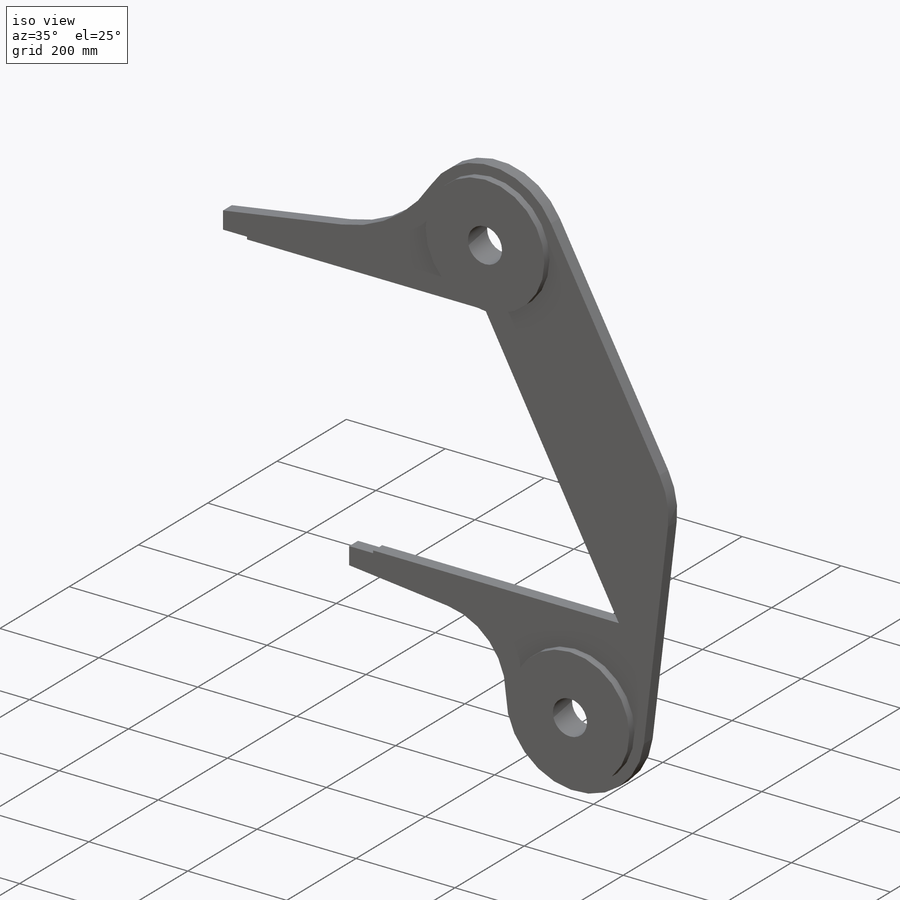
[diagram: iso view]
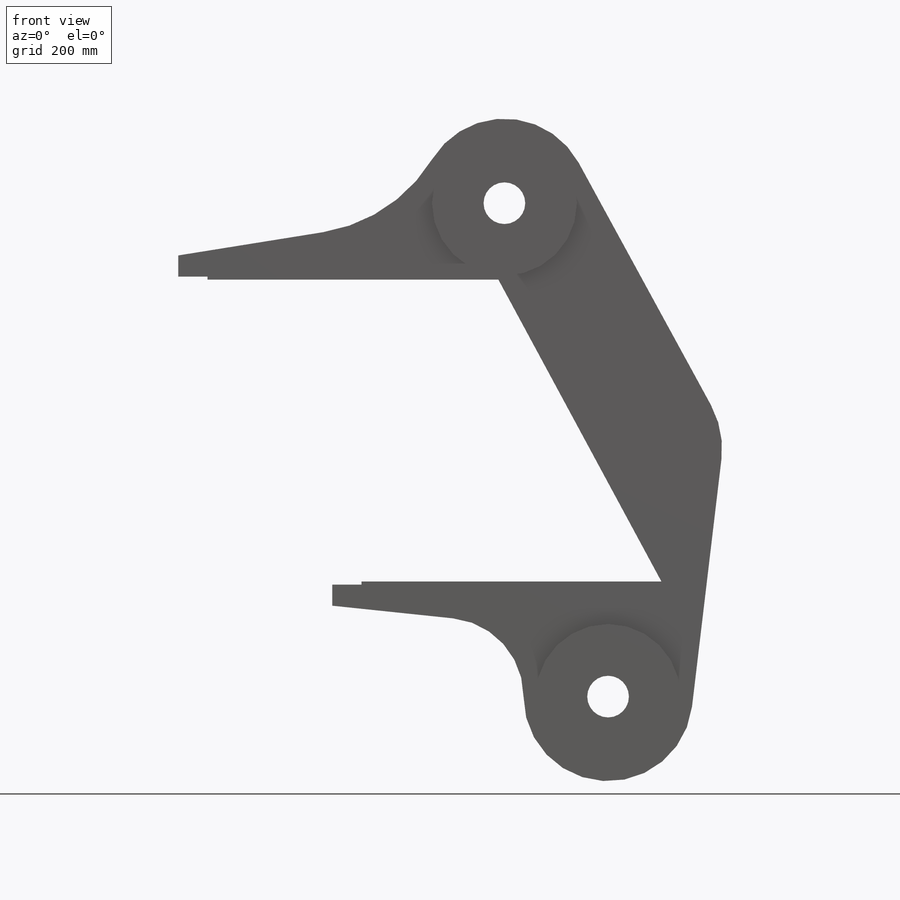
[diagram: front view]
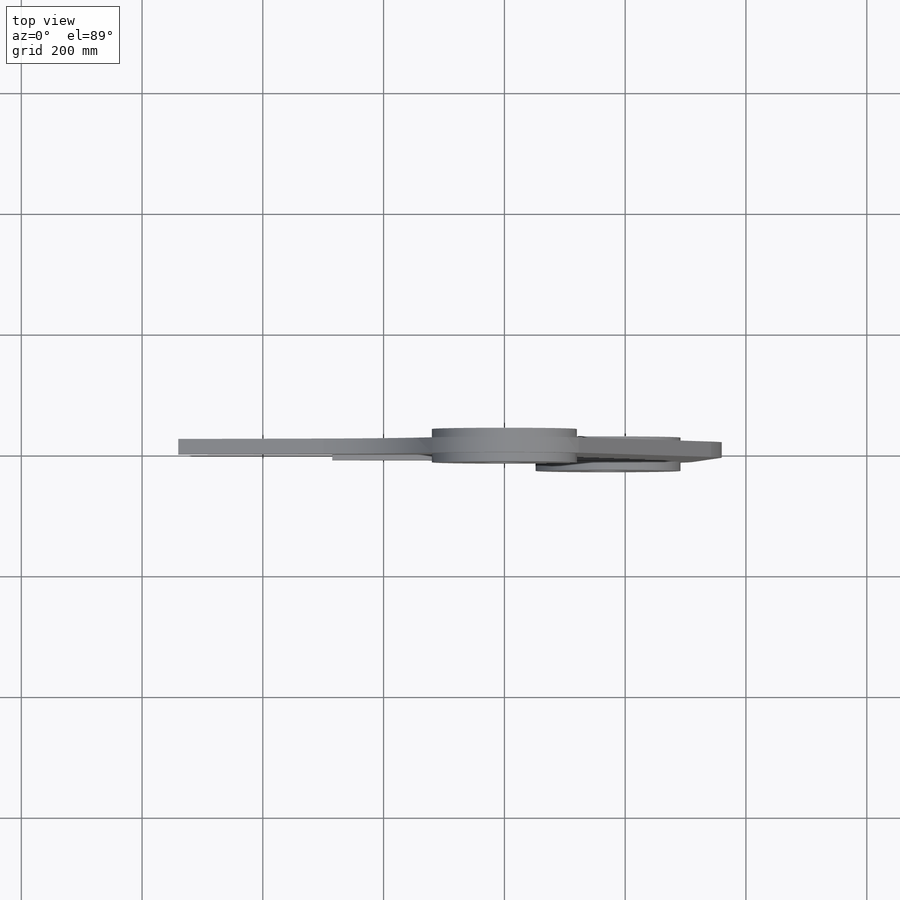
[diagram: top view]
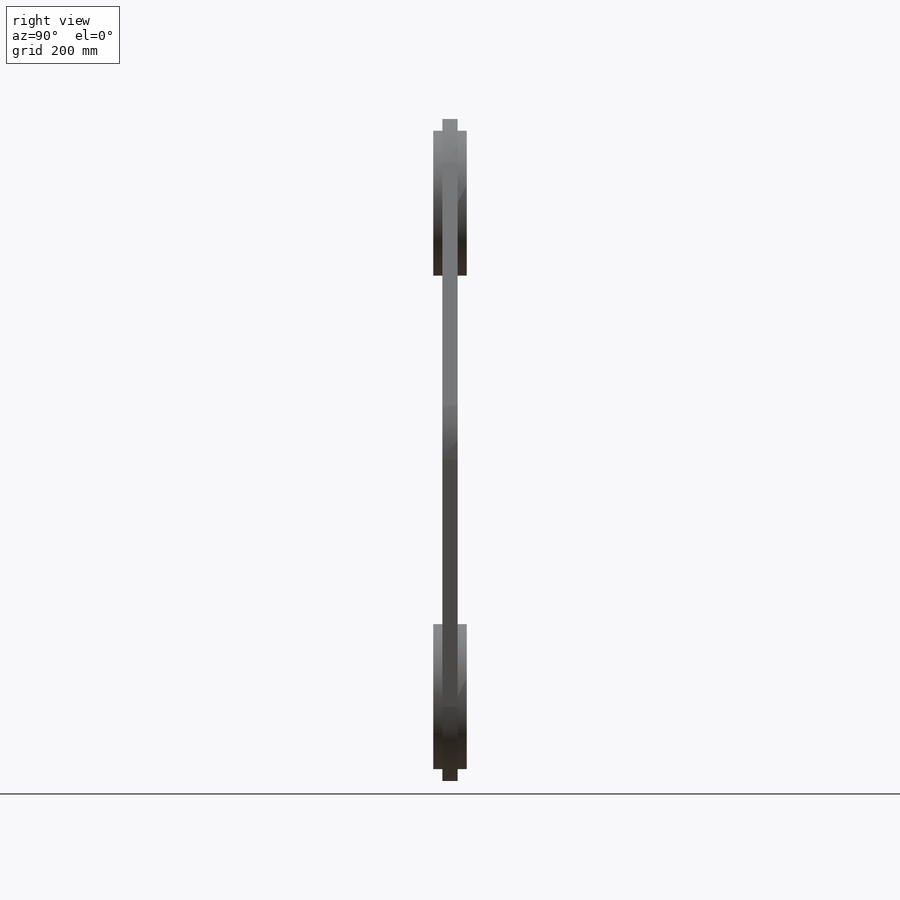
[diagram: right view]
SOLIDWORKS PART (.sldprt)
format: sldprt  version: not decoded by parser v0  size: 286,720 bytes
history: native  units: mm
features: sketch x5, plane x3, extrude x2, cut_extrude x2, material x1, fillet x1, mirror x1 (+9 scaffold rows collapsed)
feature tree (24):
  scaffold x9  (default folders/planes/origin — collapsed)
  material  "ASTM A36 Acero"
  plane  "Alzado"
  plane  "Planta"
  plane  "Vista lateral"
  sketch  "Croquis1"  dims[c1.D1=~117.928726mm c1.D2=69.0mm c1.D4=130.0mm c1.D5=140.0mm c1.D6=~210.764034mm c2.D4=140.0mm c2.D10=69.0mm c2.D14=260.0mm c2.D16=~235.469626mm c2.D18=240.0mm c2.D19=69.0mm c2.D1=40.0mm c2.D3=817.0mm c2.D6=230.0mm c2.D7=40.0mm c2.D8=500.0mm c2.D9=190.5mm c3.D10=126.5mm c3.D11=530.0mm c3.D12=545.0mm c3.D13=540.0mm c3.D15=240.0mm c3.D17=200.0mm c3.D6=530.0mm c4.D6=61.63deg c4.D16=240.0mm]
  extrude  "Saliente-Extruir1"  Depth=25.4mm
  sketch  "Croquis2"  dims[D1=100.0mm]
  cut_extrude  "Cortar-Extruir1"  Depth=5mm
  sketch  "Croquis3"  dims[D1=100.0mm]
  cut_extrude  "Cortar-Extruir2"  Depth=5mm
  fillet  "Redondeo1"  Radius=150mm
  sketch  "Croquis4"  dims[D1=240.0mm D2=240.0mm]
  extrude  "Saliente-Extruir2"  Depth=15mm
  mirror  "Simetría1"
  sketch  "Croquis5"  dims[D1=~278.321041mm]
decode coverage: 10 of 11 modeling features carry decoded parameters
note: ~ marks probable driven/reference dimensions
note: suppression state not decoded; provenance and decode notes live in map.json
